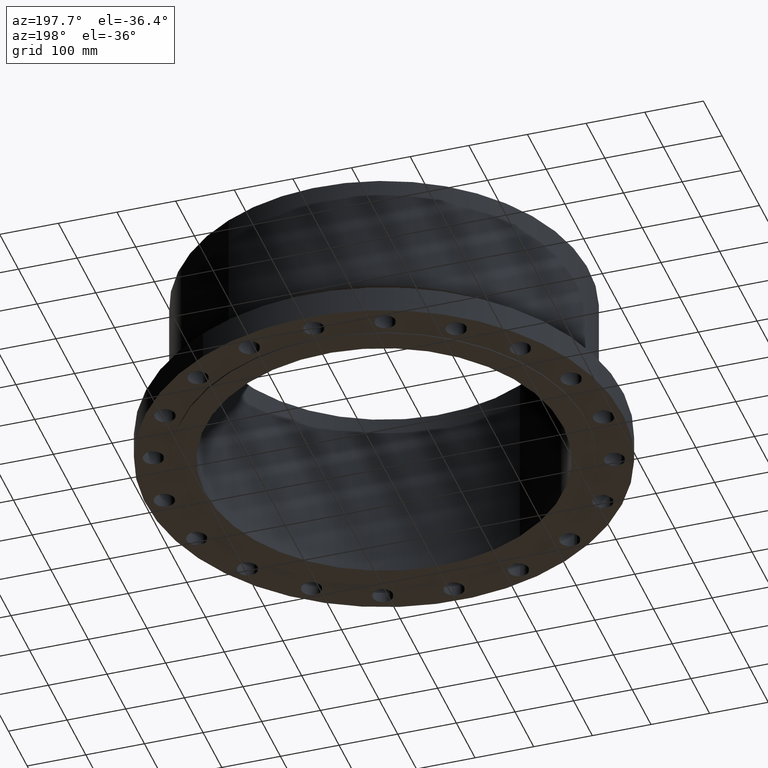
[diagram: clean part render]
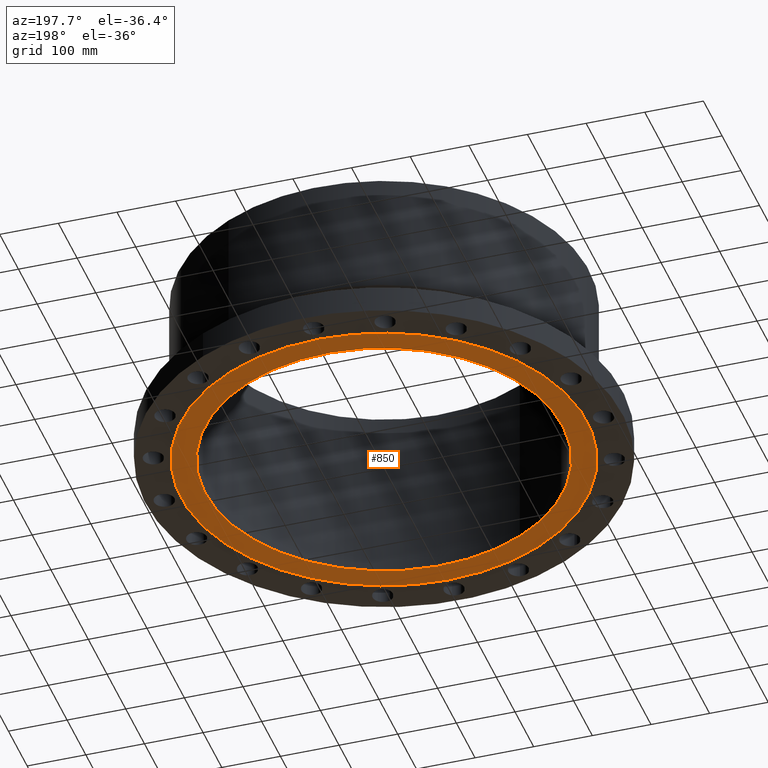
[diagram: same view with one face highlighted and labeled with its STEP entity id]
A machine part, auxiliary view. The second image highlights one B-rep face of the part: STEP entity #850.
In plain terms, the highlighted planar face has unit normal (0, 0, -1).
Its self-contained STEP definition (entity closure, byte-faithful):
#794=AXIS2_PLACEMENT_3D('Circle Axis2P3D',#792,#793,$) ;
#813=AXIS2_PLACEMENT_3D('Circle Axis2P3D',#811,#812,$) ;
#826=AXIS2_PLACEMENT_3D('Plane Axis2P3D',#823,#824,#825) ;
#830=AXIS2_PLACEMENT_3D('Circle Axis2P3D',#828,#829,$) ;
#839=AXIS2_PLACEMENT_3D('Circle Axis2P3D',#837,#838,$) ;
#789=CARTESIAN_POINT('Vertex',(5.75310646327,10.5309907427,-0.0625000000003)) ;
#792=CARTESIAN_POINT('Axis2P3D Location',(0.,0.,-0.0625000000003)) ;
#796=CARTESIAN_POINT('Vertex',(-5.75310646327,-10.5309907427,-0.0625000000003)) ;
#811=CARTESIAN_POINT('Axis2P3D Location',(0.,0.,-0.0625000000003)) ;
#823=CARTESIAN_POINT('Axis2P3D Location',(0.,12.,-0.0625000000003)) ;
#828=CARTESIAN_POINT('Axis2P3D Location',(0.,0.,-0.0625000000003)) ;
#832=CARTESIAN_POINT('Vertex',(-6.53217296351,-11.9570624058,-0.0625000000002)) ;
#834=CARTESIAN_POINT('Vertex',(6.53217296351,11.9570624058,-0.0625000000002)) ;
#837=CARTESIAN_POINT('Axis2P3D Location',(0.,0.,-0.0625000000003)) ;
#793=DIRECTION('Axis2P3D Direction',(0.,0.,-0.0393700787402)) ;
#812=DIRECTION('Axis2P3D Direction',(0.,0.,-0.0393700787402)) ;
#824=DIRECTION('Axis2P3D Direction',(0.,0.,-0.0393700787402)) ;
#825=DIRECTION('Axis2P3D XDirection',(0.0393700787402,0.,0.)) ;
#829=DIRECTION('Axis2P3D Direction',(0.,0.,-0.0393700787402)) ;
#838=DIRECTION('Axis2P3D Direction',(0.,0.,-0.0393700787402)) ;
#843=ORIENTED_EDGE('',*,*,#836,.T.) ;
#844=ORIENTED_EDGE('',*,*,#841,.T.) ;
#847=ORIENTED_EDGE('',*,*,#798,.F.) ;
#848=ORIENTED_EDGE('',*,*,#815,.F.) ;
#849=FACE_BOUND('',#846,.T.) ;
#850=ADVANCED_FACE('PartBody',(#845,#849),#827,.T.) ;
#795=CIRCLE('generated circle',#794,12.) ;
#814=CIRCLE('generated circle',#813,12.) ;
#831=CIRCLE('generated circle',#830,13.6250000001) ;
#840=CIRCLE('generated circle',#839,13.6250000001) ;
#798=EDGE_CURVE('',#790,#797,#795,.T.) ;
#815=EDGE_CURVE('',#797,#790,#814,.T.) ;
#836=EDGE_CURVE('',#833,#835,#831,.T.) ;
#841=EDGE_CURVE('',#835,#833,#840,.T.) ;
#842=EDGE_LOOP('',(#843,#844)) ;
#846=EDGE_LOOP('',(#847,#848)) ;
#845=FACE_OUTER_BOUND('',#842,.T.) ;
#827=PLANE('',#826) ;
#790=VERTEX_POINT('',#789) ;
#797=VERTEX_POINT('',#796) ;
#833=VERTEX_POINT('',#832) ;
#835=VERTEX_POINT('',#834) ;